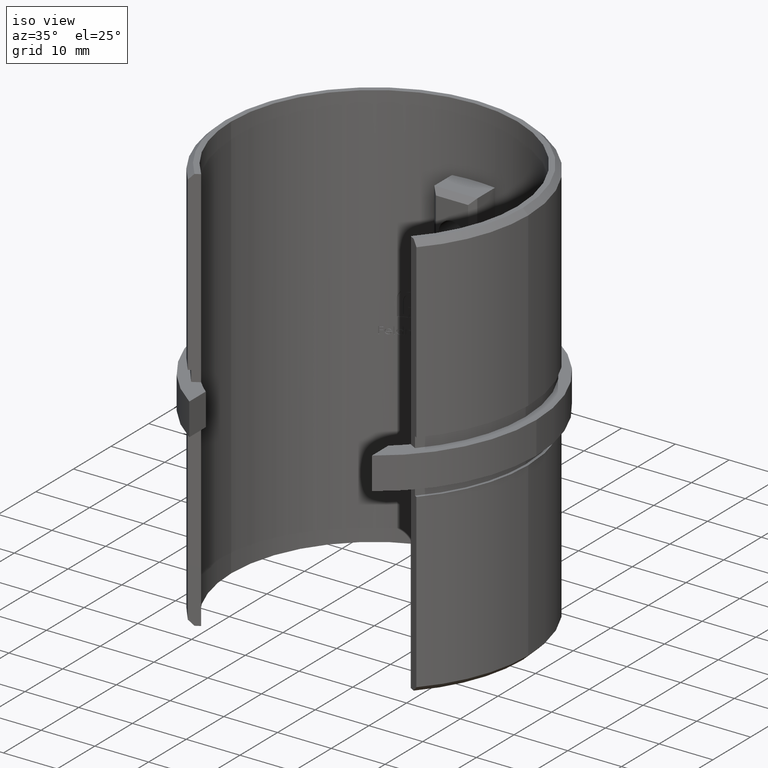
[diagram: clean part render]
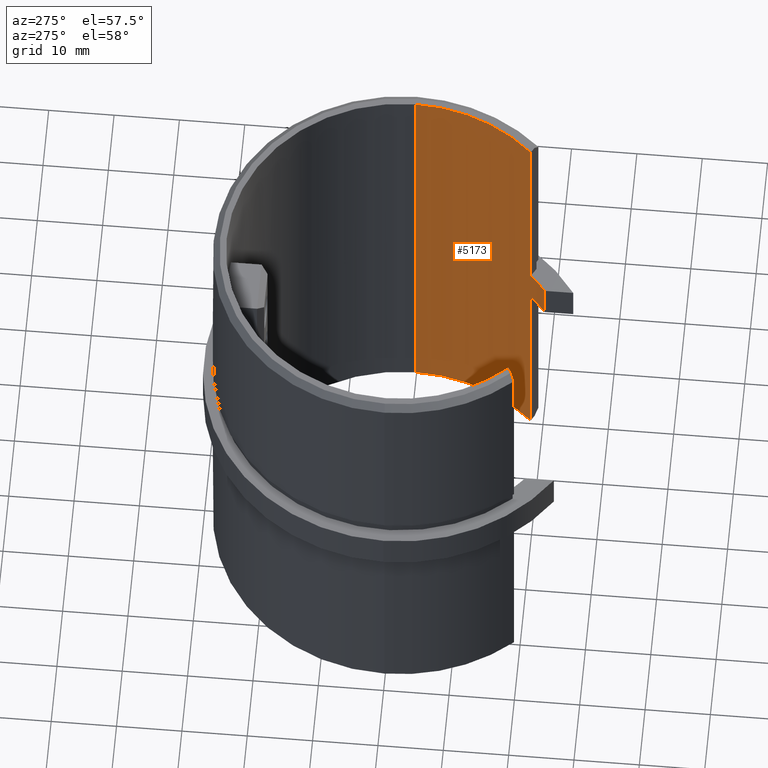
[diagram: tour spotlight — one face highlighted and labeled with its STEP entity id]
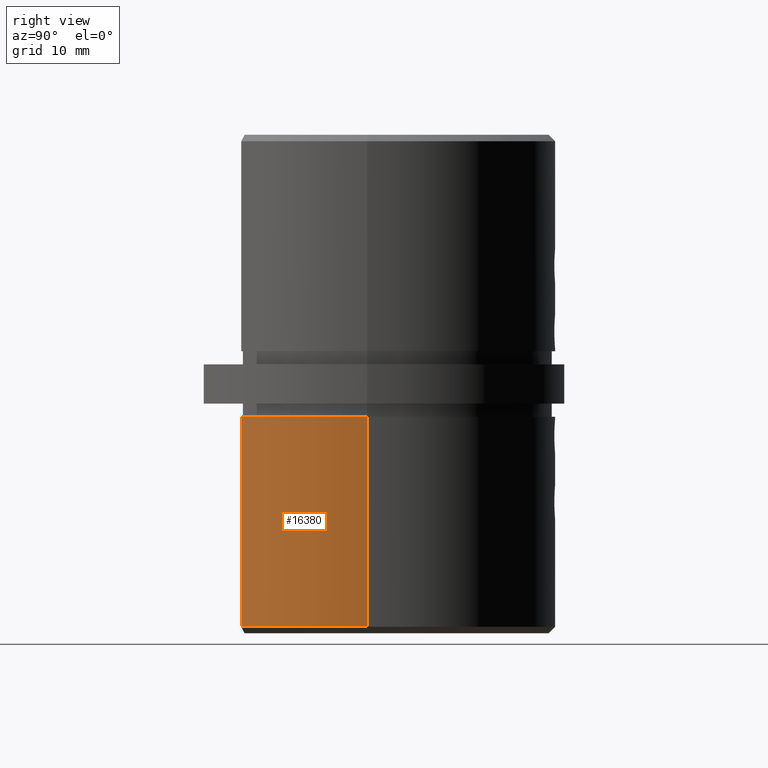
[diagram: tour spotlight — one face highlighted and labeled with its STEP entity id]
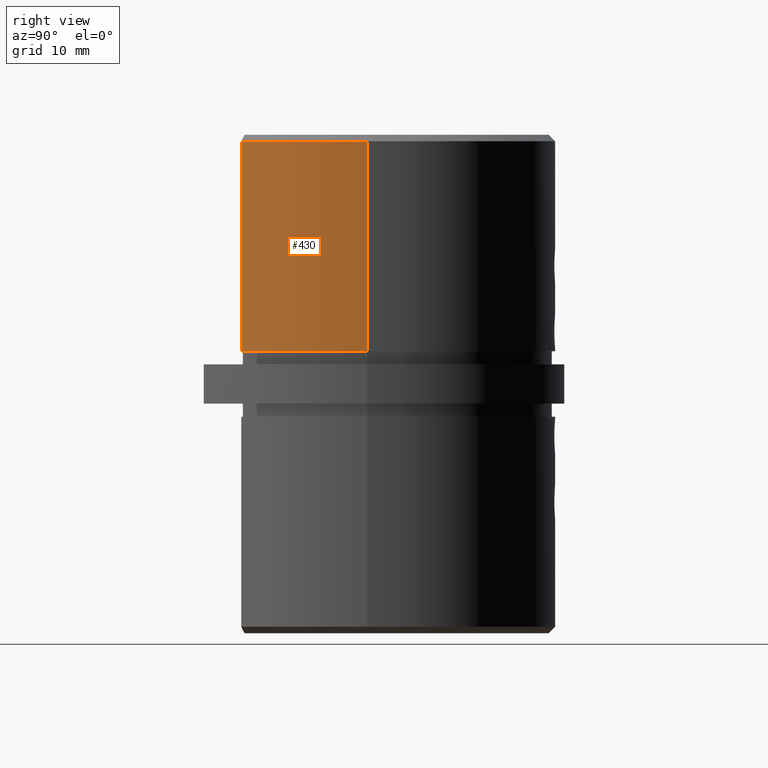
[diagram: tour spotlight — one face highlighted and labeled with its STEP entity id]
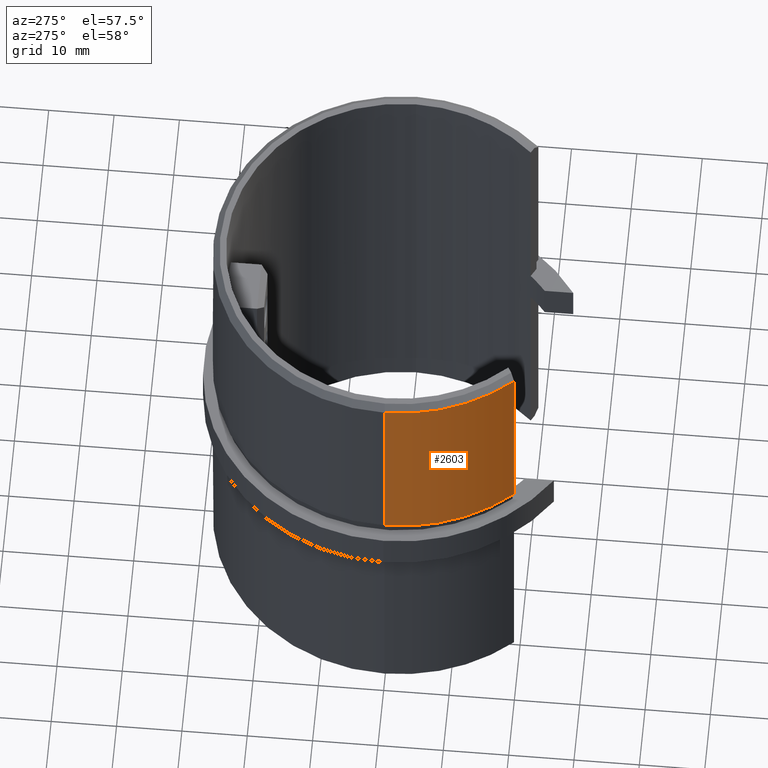
[diagram: tour spotlight — one face highlighted and labeled with its STEP entity id]
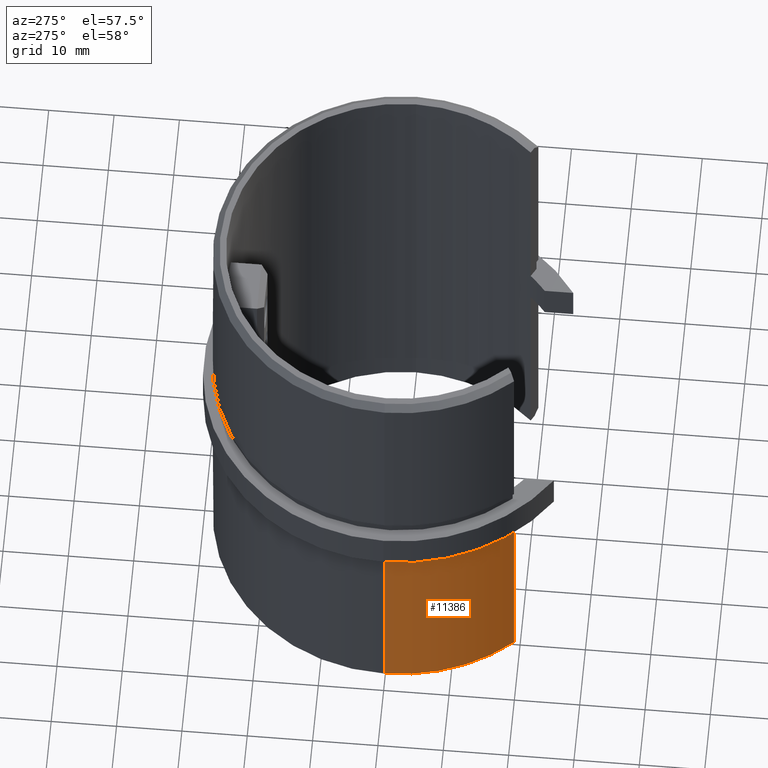
[diagram: tour spotlight — one face highlighted and labeled with its STEP entity id]
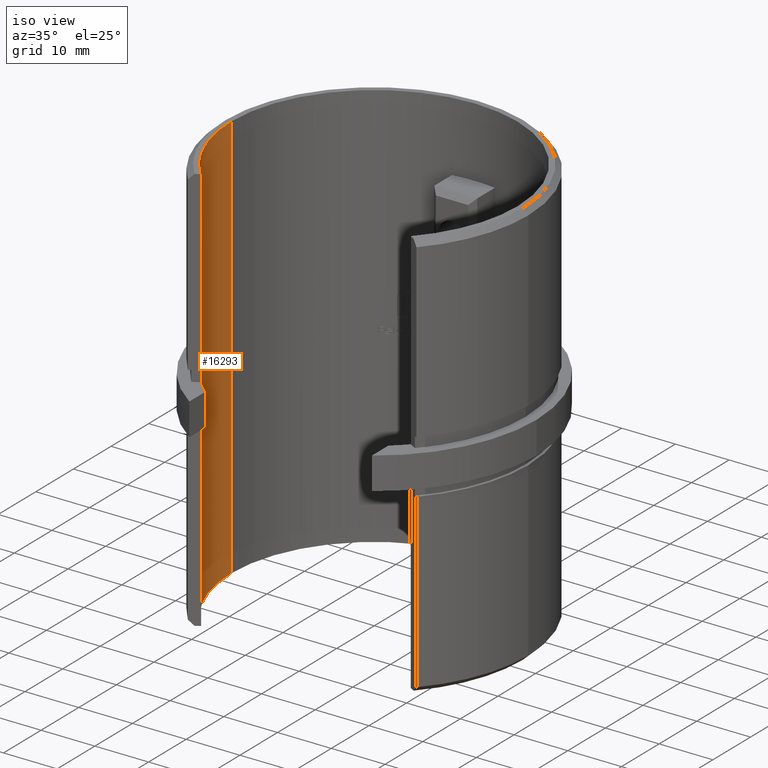
[diagram: tour spotlight — one face highlighted and labeled with its STEP entity id]
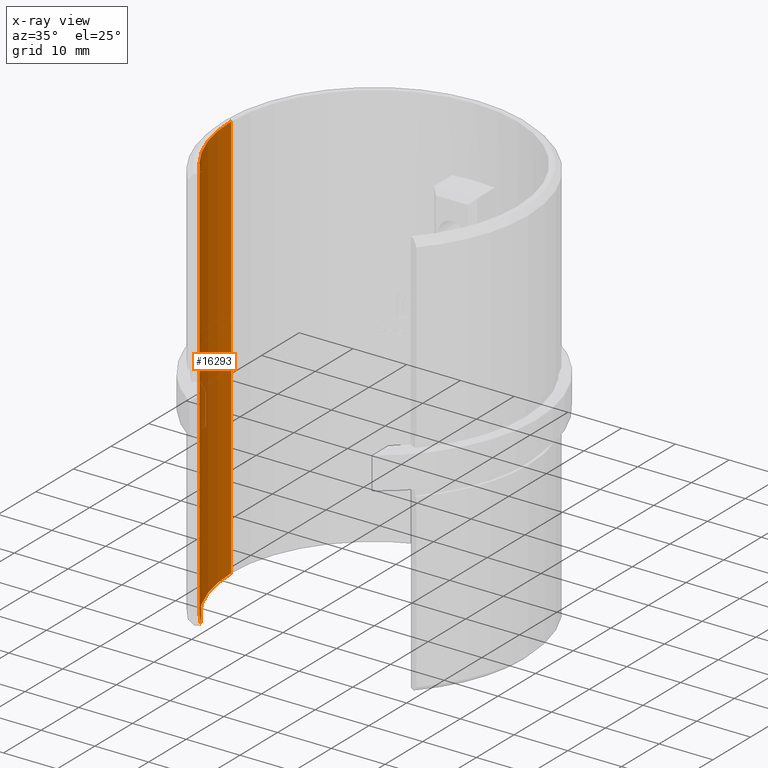
[diagram: x-ray of the same camera — body ghosted, this tour face saturated]
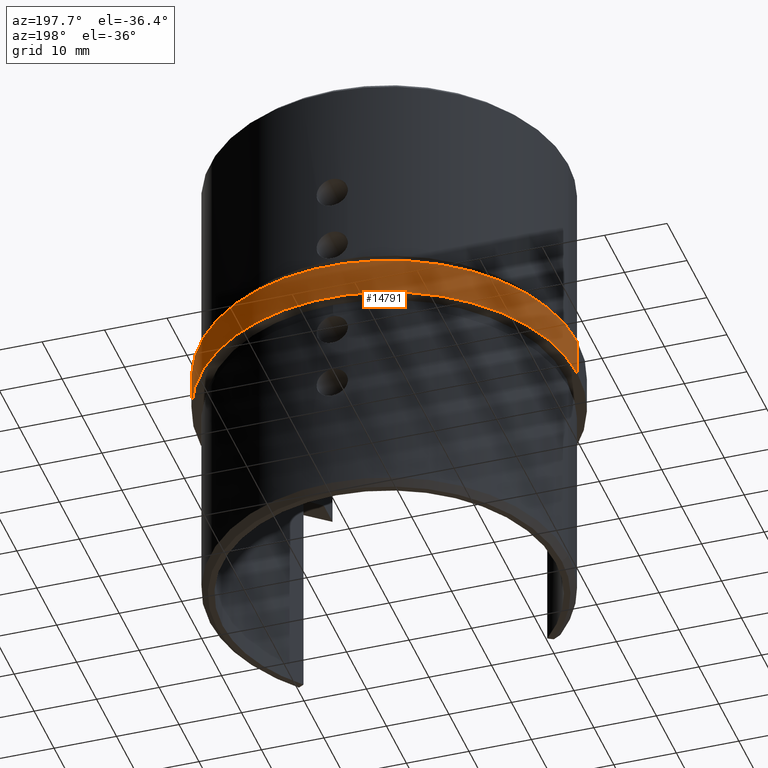
[diagram: tour spotlight — one face highlighted and labeled with its STEP entity id]
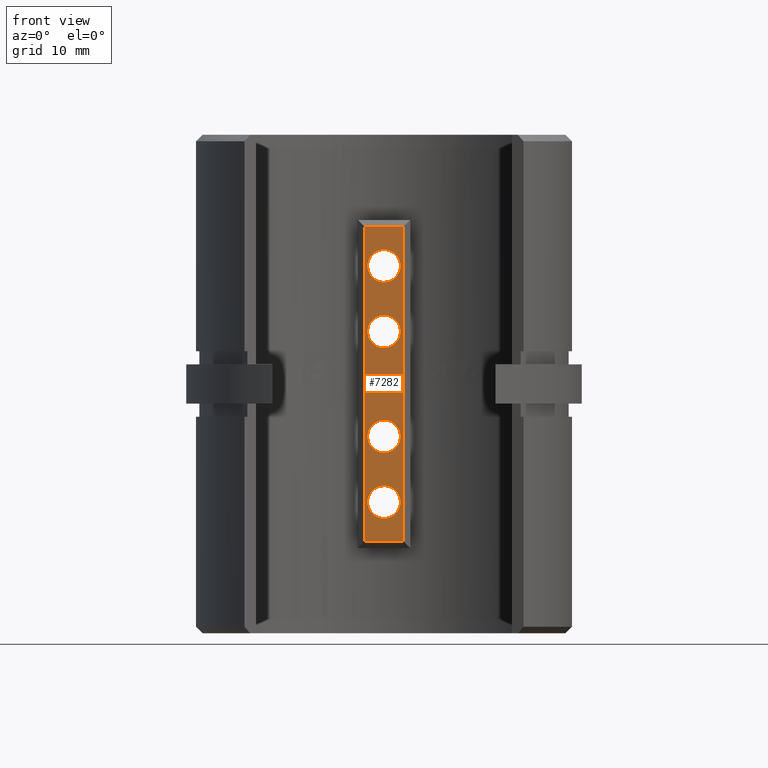
[diagram: tour spotlight — one face highlighted and labeled with its STEP entity id]
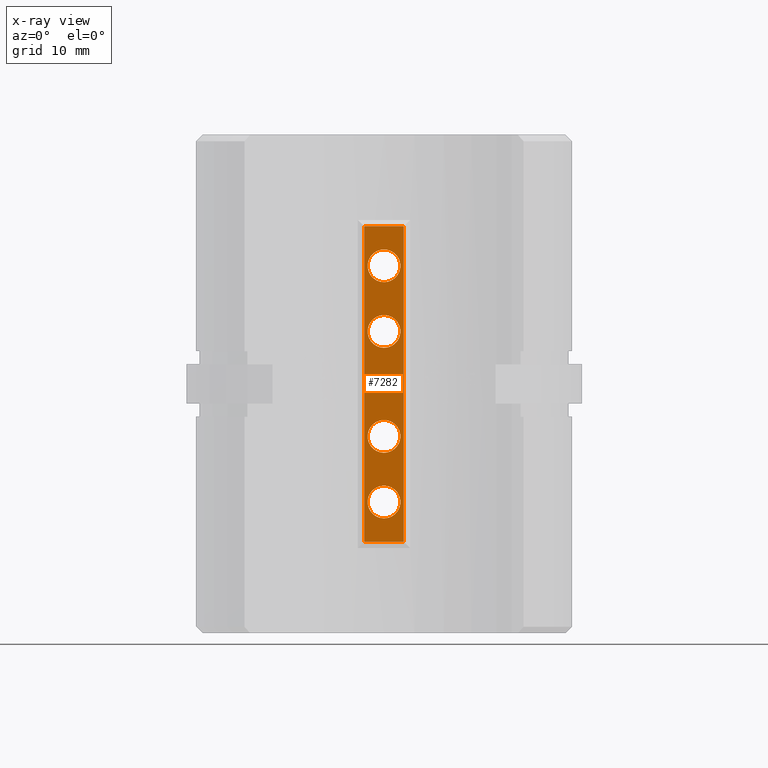
[diagram: x-ray of the same camera — body ghosted, this tour face saturated]
A machine part: a face-by-face anatomy tour. The part has 352 B-rep faces; the first image is the clean iso view, then the 8 largest visible faces are spotlighted one at a time (largest first), each with its STEP entity span.

Face 1 — auxiliary view, entity #5173. In plain terms, the highlighted cylindrical surface (partial cylindrical patch) has radius 26.65 mm, axis along (-0, -0, -1).
Definition (entity closure, byte-faithful):
#77 = AXIS2_PLACEMENT_3D ( 'NONE', #15982, #760, #15920 ) ;
#199 = LINE ( 'NONE', #6720, #13312 ) ;
#418 = EDGE_LOOP ( 'NONE', ( #5880, #13785, #6322, #13668, #9775, #15949, #1820, #4705 ) ) ;
#476 = DIRECTION ( 'NONE',  ( -0.000000000000000000, -0.000000000000000000, -1.000000000000000000 ) ) ;
#760 = DIRECTION ( 'NONE',  ( -0.000000000000000000, -0.000000000000000000, -1.000000000000000000 ) ) ;
#975 = EDGE_CURVE ( 'NONE', #5210, #9560, #5641, .T. ) ;
#1085 = DIRECTION ( 'NONE',  ( -0.000000000000000000, -0.000000000000000000, -1.000000000000000000 ) ) ;
#1140 = CARTESIAN_POINT ( 'NONE',  ( 0.000000000000000000, 0.000000000000000000, 3.000000000000000000 ) ) ;
#1511 = AXIS2_PLACEMENT_3D ( 'NONE', #1140, #5077, #2422 ) ;
#1820 = ORIENTED_EDGE ( 'NONE', *, *, #12419, .F. ) ;
#1843 = CARTESIAN_POINT ( 'NONE',  ( 17.00000000000000711, -20.52370580572621606, 3.000000000000000000 ) ) ;
#1875 = VECTOR ( 'NONE', #15994, 1000.000000000000000 ) ;
#1952 = VERTEX_POINT ( 'NONE', #2101 ) ;
#2101 = CARTESIAN_POINT ( 'NONE',  ( 17.00000000000000711, -20.52370580572621606, -3.000000000000000000 ) ) ;
#2422 = DIRECTION ( 'NONE',  ( 1.000000000000000000, 0.000000000000000000, 0.000000000000000000 ) ) ;
#3072 = CIRCLE ( 'NONE', #77, 26.65000000000000213 ) ;
#3514 = VERTEX_POINT ( 'NONE', #14158 ) ;
#3894 = EDGE_CURVE ( 'NONE', #15864, #1952, #12466, .T. ) ;
#3935 = CARTESIAN_POINT ( 'NONE',  ( 0.000000000000000000, 0.000000000000000000, -38.00000000000000711 ) ) ;
#4326 = FACE_OUTER_BOUND ( 'NONE', #418, .T. ) ;
#4331 = EDGE_CURVE ( 'NONE', #7545, #10898, #6745, .T. ) ;
#4705 = ORIENTED_EDGE ( 'NONE', *, *, #14908, .F. ) ;
#4805 = DIRECTION ( 'NONE',  ( 1.000000000000000000, 0.000000000000000000, 0.000000000000000000 ) ) ;
#4905 = CIRCLE ( 'NONE', #13985, 26.65000000000000568 ) ;
#5077 = DIRECTION ( 'NONE',  ( -0.000000000000000000, -0.000000000000000000, -1.000000000000000000 ) ) ;
#5173 = ADVANCED_FACE ( 'NONE', ( #4326 ), #10287, .F. ) ;
#5210 = VERTEX_POINT ( 'NONE', #11060 ) ;
#5641 = LINE ( 'NONE', #12293, #1875 ) ;
#5744 = VECTOR ( 'NONE', #10725, 1000.000000000000000 ) ;
#5880 = ORIENTED_EDGE ( 'NONE', *, *, #6069, .F. ) ;
#6069 = EDGE_CURVE ( 'NONE', #7545, #3514, #4905, .T. ) ;
#6090 = CARTESIAN_POINT ( 'NONE',  ( 0.000000000000000000, 0.000000000000000000, 38.00000000000000711 ) ) ;
#6322 = ORIENTED_EDGE ( 'NONE', *, *, #12847, .T. ) ;
#6545 = VECTOR ( 'NONE', #476, 1000.000000000000000 ) ;
#6720 = CARTESIAN_POINT ( 'NONE',  ( 19.50000000000000355, -18.16514519622676005, 38.00000000000000711 ) ) ;
#6745 = LINE ( 'NONE', #14125, #6545 ) ;
#6767 = CARTESIAN_POINT ( 'NONE',  ( 26.65000000000000924, 3.263683719727697378E-15, -38.00000000000000711 ) ) ;
#7545 = VERTEX_POINT ( 'NONE', #10656 ) ;
#9560 = VERTEX_POINT ( 'NONE', #16249 ) ;
#9775 = ORIENTED_EDGE ( 'NONE', *, *, #10678, .T. ) ;
#9894 = AXIS2_PLACEMENT_3D ( 'NONE', #14367, #15606, #13557 ) ;
#10227 = DIRECTION ( 'NONE',  ( 1.000000000000000000, 0.000000000000000000, 0.000000000000000000 ) ) ;
#10287 = CYLINDRICAL_SURFACE ( 'NONE', #9894, 26.65000000000000213 ) ;
#10427 = DIRECTION ( 'NONE',  ( -0.000000000000000000, -0.000000000000000000, -1.000000000000000000 ) ) ;
#10656 = CARTESIAN_POINT ( 'NONE',  ( 26.65000000000000924, 3.263683719727697378E-15, 38.00000000000000711 ) ) ;
#10678 = EDGE_CURVE ( 'NONE', #9560, #1952, #3072, .T. ) ;
#10725 = DIRECTION ( 'NONE',  ( -0.000000000000000000, -0.000000000000000000, -1.000000000000000000 ) ) ;
#10898 = VERTEX_POINT ( 'NONE', #6767 ) ;
#11060 = CARTESIAN_POINT ( 'NONE',  ( 19.50000000000000355, -18.16514519622676005, -38.00000000000000711 ) ) ;
#12151 = CIRCLE ( 'NONE', #12543, 26.65000000000000568 ) ;
#12293 = CARTESIAN_POINT ( 'NONE',  ( 19.50000000000000355, -18.16514519622676005, -38.00000000000000711 ) ) ;
#12419 = EDGE_CURVE ( 'NONE', #14746, #15864, #16286, .T. ) ;
#12466 = LINE ( 'NONE', #1843, #5744 ) ;
#12543 = AXIS2_PLACEMENT_3D ( 'NONE', #3935, #12706, #10227 ) ;
#12706 = DIRECTION ( 'NONE',  ( 0.000000000000000000, 0.000000000000000000, -1.000000000000000000 ) ) ;
#12847 = EDGE_CURVE ( 'NONE', #10898, #5210, #12151, .T. ) ;
#13312 = VECTOR ( 'NONE', #10427, 1000.000000000000000 ) ;
#13557 = DIRECTION ( 'NONE',  ( -1.000000000000000000, 0.000000000000000000, 0.000000000000000000 ) ) ;
#13668 = ORIENTED_EDGE ( 'NONE', *, *, #975, .T. ) ;
#13785 = ORIENTED_EDGE ( 'NONE', *, *, #4331, .T. ) ;
#13985 = AXIS2_PLACEMENT_3D ( 'NONE', #6090, #1085, #4805 ) ;
#14125 = CARTESIAN_POINT ( 'NONE',  ( 26.65000000000000213, 3.263683719727696589E-15, 3.000000000000000000 ) ) ;
#14158 = CARTESIAN_POINT ( 'NONE',  ( 19.50000000000000355, -18.16514519622676005, 38.00000000000000711 ) ) ;
#14367 = CARTESIAN_POINT ( 'NONE',  ( 0.000000000000000000, 0.000000000000000000, 3.000000000000000000 ) ) ;
#14746 = VERTEX_POINT ( 'NONE', #15324 ) ;
#14908 = EDGE_CURVE ( 'NONE', #3514, #14746, #199, .T. ) ;
#15324 = CARTESIAN_POINT ( 'NONE',  ( 19.50000000000000355, -18.16514519622676005, 3.000000000000000000 ) ) ;
#15407 = CARTESIAN_POINT ( 'NONE',  ( 17.00000000000000711, -20.52370580572621606, 3.000000000000000000 ) ) ;
#15606 = DIRECTION ( 'NONE',  ( -0.000000000000000000, -0.000000000000000000, -1.000000000000000000 ) ) ;
#15864 = VERTEX_POINT ( 'NONE', #15407 ) ;
#15920 = DIRECTION ( 'NONE',  ( 1.000000000000000000, 0.000000000000000000, 0.000000000000000000 ) ) ;
#15949 = ORIENTED_EDGE ( 'NONE', *, *, #3894, .F. ) ;
#15982 = CARTESIAN_POINT ( 'NONE',  ( 0.000000000000000000, 0.000000000000000000, -3.000000000000000000 ) ) ;
#15994 = DIRECTION ( 'NONE',  ( -0.000000000000000000, -0.000000000000000000, 1.000000000000000000 ) ) ;
#16249 = CARTESIAN_POINT ( 'NONE',  ( 19.50000000000000355, -18.16514519622676005, -3.000000000000000000 ) ) ;
#16286 = CIRCLE ( 'NONE', #1511, 26.65000000000000213 ) ;

Face 2 — right view, entity #16380. In plain terms, the highlighted cylindrical surface (partial cylindrical patch) has radius 28.65 mm, axis along (-0, -0, 1).
Definition (entity closure, byte-faithful):
#327 = AXIS2_PLACEMENT_3D ( 'NONE', #4426, #15814, #3091 ) ;
#1088 = CARTESIAN_POINT ( 'NONE',  ( 21.27411917348713644, -19.18943337861405496, -37.00000000000003553 ) ) ;
#1336 = FACE_OUTER_BOUND ( 'NONE', #11143, .T. ) ;
#1661 = EDGE_CURVE ( 'NONE', #14603, #7468, #6219, .T. ) ;
#2485 = CARTESIAN_POINT ( 'NONE',  ( 21.27411917348713644, -19.18943337861404075, -4.999999999999997335 ) ) ;
#2677 = EDGE_CURVE ( 'NONE', #15092, #7912, #15885, .T. ) ;
#2776 = EDGE_CURVE ( 'NONE', #14603, #15092, #8214, .T. ) ;
#3091 = DIRECTION ( 'NONE',  ( 1.000000000000000000, 0.000000000000000000, 0.000000000000000000 ) ) ;
#3430 = CIRCLE ( 'NONE', #3474, 28.65000000000000213 ) ;
#3474 = AXIS2_PLACEMENT_3D ( 'NONE', #15225, #11470, #8889 ) ;
#4118 = CYLINDRICAL_SURFACE ( 'NONE', #327, 28.65000000000000213 ) ;
#4426 = CARTESIAN_POINT ( 'NONE',  ( 0.000000000000000000, 0.000000000000000000, -38.00000000000000711 ) ) ;
#4626 = CARTESIAN_POINT ( 'NONE',  ( 28.65000000000000213, 0.000000000000000000, -37.00000000000003553 ) ) ;
#5040 = CARTESIAN_POINT ( 'NONE',  ( 0.000000000000000000, 0.000000000000000000, -37.00000000000003553 ) ) ;
#5225 = CARTESIAN_POINT ( 'NONE',  ( 28.65000000000000213, 0.000000000000000000, -38.00000000000000711 ) ) ;
#5870 = DIRECTION ( 'NONE',  ( -1.000000000000000000, 1.776356839400250465E-15, 0.000000000000000000 ) ) ;
#6117 = AXIS2_PLACEMENT_3D ( 'NONE', #5040, #7739, #5870 ) ;
#6219 = LINE ( 'NONE', #8558, #7432 ) ;
#6251 = ORIENTED_EDGE ( 'NONE', *, *, #1661, .F. ) ;
#7432 = VECTOR ( 'NONE', #13757, 1000.000000000000000 ) ;
#7468 = VERTEX_POINT ( 'NONE', #2485 ) ;
#7739 = DIRECTION ( 'NONE',  ( -0.000000000000000000, -0.000000000000000000, 1.000000000000000000 ) ) ;
#7779 = ORIENTED_EDGE ( 'NONE', *, *, #2677, .T. ) ;
#7912 = VERTEX_POINT ( 'NONE', #12155 ) ;
#8214 = CIRCLE ( 'NONE', #6117, 28.65000000000000213 ) ;
#8558 = CARTESIAN_POINT ( 'NONE',  ( 21.27411917348713644, -19.18943337861405496, -38.00000000000000711 ) ) ;
#8889 = DIRECTION ( 'NONE',  ( 1.000000000000000000, 0.000000000000000000, 0.000000000000000000 ) ) ;
#8955 = DIRECTION ( 'NONE',  ( -0.000000000000000000, -0.000000000000000000, 1.000000000000000000 ) ) ;
#9967 = VECTOR ( 'NONE', #8955, 1000.000000000000000 ) ;
#10681 = ORIENTED_EDGE ( 'NONE', *, *, #2776, .T. ) ;
#11029 = EDGE_CURVE ( 'NONE', #7912, #7468, #3430, .T. ) ;
#11143 = EDGE_LOOP ( 'NONE', ( #10681, #7779, #11254, #6251 ) ) ;
#11254 = ORIENTED_EDGE ( 'NONE', *, *, #11029, .T. ) ;
#11470 = DIRECTION ( 'NONE',  ( 0.000000000000000000, 0.000000000000000000, -1.000000000000000000 ) ) ;
#12155 = CARTESIAN_POINT ( 'NONE',  ( 28.65000000000000213, 0.000000000000000000, -4.999999999999997335 ) ) ;
#13757 = DIRECTION ( 'NONE',  ( -0.000000000000000000, -0.000000000000000000, 1.000000000000000000 ) ) ;
#14603 = VERTEX_POINT ( 'NONE', #1088 ) ;
#15092 = VERTEX_POINT ( 'NONE', #4626 ) ;
#15225 = CARTESIAN_POINT ( 'NONE',  ( 0.000000000000000000, 0.000000000000000000, -4.999999999999997335 ) ) ;
#15814 = DIRECTION ( 'NONE',  ( -0.000000000000000000, -0.000000000000000000, 1.000000000000000000 ) ) ;
#15885 = LINE ( 'NONE', #5225, #9967 ) ;
#16380 = ADVANCED_FACE ( 'NONE', ( #1336 ), #4118, .T. ) ;

Face 3 — right view, entity #430. In plain terms, the highlighted cylindrical surface (partial cylindrical patch) has radius 28.65 mm, axis along (-0, -0, -1).
Definition (entity closure, byte-faithful):
#82 = VECTOR ( 'NONE', #16329, 1000.000000000000000 ) ;
#109 = EDGE_CURVE ( 'NONE', #9451, #11307, #7445, .T. ) ;
#241 = CARTESIAN_POINT ( 'NONE',  ( 21.27411917348713288, -19.18943337861405141, 4.999999999999997335 ) ) ;
#364 = CARTESIAN_POINT ( 'NONE',  ( 0.000000000000000000, 0.000000000000000000, 38.00000000000000711 ) ) ;
#430 = ADVANCED_FACE ( 'NONE', ( #3848 ), #5248, .T. ) ;
#603 = ORIENTED_EDGE ( 'NONE', *, *, #109, .T. ) ;
#762 = CARTESIAN_POINT ( 'NONE',  ( 21.27411917348713644, -19.18943337861405496, 37.00000000000000000 ) ) ;
#795 = DIRECTION ( 'NONE',  ( -1.000000000000000000, 0.000000000000000000, 0.000000000000000000 ) ) ;
#912 = DIRECTION ( 'NONE',  ( -0.000000000000000000, -0.000000000000000000, -1.000000000000000000 ) ) ;
#2043 = DIRECTION ( 'NONE',  ( -0.000000000000000000, -0.000000000000000000, -1.000000000000000000 ) ) ;
#3065 = CARTESIAN_POINT ( 'NONE',  ( 21.27411917348713644, -19.18943337861405496, 38.00000000000000711 ) ) ;
#3848 = FACE_OUTER_BOUND ( 'NONE', #8082, .T. ) ;
#4193 = ORIENTED_EDGE ( 'NONE', *, *, #8351, .F. ) ;
#4422 = CARTESIAN_POINT ( 'NONE',  ( 28.65000000000000213, 3.508613079557167674E-15, 4.999999999999997335 ) ) ;
#5248 = CYLINDRICAL_SURFACE ( 'NONE', #11722, 28.65000000000000213 ) ;
#6662 = CIRCLE ( 'NONE', #16304, 28.65000000000000213 ) ;
#7065 = VECTOR ( 'NONE', #2043, 1000.000000000000000 ) ;
#7445 = LINE ( 'NONE', #3065, #82 ) ;
#7831 = CIRCLE ( 'NONE', #8948, 28.65000000000000213 ) ;
#7911 = ORIENTED_EDGE ( 'NONE', *, *, #12318, .F. ) ;
#8082 = EDGE_LOOP ( 'NONE', ( #4193, #10563, #603, #7911 ) ) ;
#8264 = CARTESIAN_POINT ( 'NONE',  ( 0.000000000000000000, 0.000000000000000000, 37.00000000000000000 ) ) ;
#8351 = EDGE_CURVE ( 'NONE', #14264, #8664, #11008, .T. ) ;
#8664 = VERTEX_POINT ( 'NONE', #4422 ) ;
#8702 = DIRECTION ( 'NONE',  ( -1.000000000000000000, 0.000000000000000000, 0.000000000000000000 ) ) ;
#8948 = AXIS2_PLACEMENT_3D ( 'NONE', #14764, #912, #8702 ) ;
#9004 = CARTESIAN_POINT ( 'NONE',  ( 28.65000000000000213, 3.508613079557167674E-15, 37.00000000000000000 ) ) ;
#9451 = VERTEX_POINT ( 'NONE', #762 ) ;
#9815 = EDGE_CURVE ( 'NONE', #14264, #9451, #6662, .T. ) ;
#10563 = ORIENTED_EDGE ( 'NONE', *, *, #9815, .T. ) ;
#10702 = DIRECTION ( 'NONE',  ( 0.000000000000000000, 0.000000000000000000, -1.000000000000000000 ) ) ;
#10959 = DIRECTION ( 'NONE',  ( -0.000000000000000000, -0.000000000000000000, -1.000000000000000000 ) ) ;
#11008 = LINE ( 'NONE', #14628, #7065 ) ;
#11307 = VERTEX_POINT ( 'NONE', #241 ) ;
#11722 = AXIS2_PLACEMENT_3D ( 'NONE', #364, #10959, #795 ) ;
#11955 = DIRECTION ( 'NONE',  ( 1.000000000000000000, 0.000000000000000000, 0.000000000000000000 ) ) ;
#12318 = EDGE_CURVE ( 'NONE', #8664, #11307, #7831, .T. ) ;
#14264 = VERTEX_POINT ( 'NONE', #9004 ) ;
#14628 = CARTESIAN_POINT ( 'NONE',  ( 28.65000000000000213, 3.508613079557167674E-15, 38.00000000000000711 ) ) ;
#14764 = CARTESIAN_POINT ( 'NONE',  ( 0.000000000000000000, 0.000000000000000000, 4.999999999999997335 ) ) ;
#16304 = AXIS2_PLACEMENT_3D ( 'NONE', #8264, #10702, #11955 ) ;
#16329 = DIRECTION ( 'NONE',  ( -0.000000000000000000, -0.000000000000000000, -1.000000000000000000 ) ) ;

Face 4 — auxiliary view, entity #2603. In plain terms, the highlighted cylindrical surface (partial cylindrical patch) has radius 28.65 mm, axis along (-0, -0, -1).
Definition (entity closure, byte-faithful):
#321 = DIRECTION ( 'NONE',  ( -0.000000000000000000, -0.000000000000000000, -1.000000000000000000 ) ) ;
#608 = AXIS2_PLACEMENT_3D ( 'NONE', #1206, #10088, #12625 ) ;
#1206 = CARTESIAN_POINT ( 'NONE',  ( 0.000000000000000000, 0.000000000000000000, 37.00000000000000000 ) ) ;
#1385 = CARTESIAN_POINT ( 'NONE',  ( 0.000000000000000000, 0.000000000000000000, 4.999999999999997335 ) ) ;
#1626 = CARTESIAN_POINT ( 'NONE',  ( -21.27411917348713644, -19.18943337861405141, 38.00000000000000711 ) ) ;
#2295 = VERTEX_POINT ( 'NONE', #5604 ) ;
#2596 = VECTOR ( 'NONE', #15723, 1000.000000000000000 ) ;
#2603 = ADVANCED_FACE ( 'NONE', ( #12940 ), #2825, .T. ) ;
#2647 = AXIS2_PLACEMENT_3D ( 'NONE', #1385, #16441, #3707 ) ;
#2740 = CARTESIAN_POINT ( 'NONE',  ( 0.000000000000000000, 0.000000000000000000, 38.00000000000000711 ) ) ;
#2825 = CYLINDRICAL_SURFACE ( 'NONE', #14413, 28.65000000000000213 ) ;
#3707 = DIRECTION ( 'NONE',  ( -1.000000000000000000, 0.000000000000000000, 0.000000000000000000 ) ) ;
#4656 = ORIENTED_EDGE ( 'NONE', *, *, #14313, .F. ) ;
#4907 = ORIENTED_EDGE ( 'NONE', *, *, #11006, .F. ) ;
#5124 = EDGE_CURVE ( 'NONE', #2295, #14552, #9880, .T. ) ;
#5604 = CARTESIAN_POINT ( 'NONE',  ( -28.65000000000000213, 0.000000000000000000, 37.00000000000000000 ) ) ;
#6397 = VERTEX_POINT ( 'NONE', #8326 ) ;
#7236 = CIRCLE ( 'NONE', #2647, 28.65000000000000213 ) ;
#7638 = DIRECTION ( 'NONE',  ( -0.000000000000000000, -0.000000000000000000, -1.000000000000000000 ) ) ;
#8130 = VECTOR ( 'NONE', #321, 1000.000000000000000 ) ;
#8326 = CARTESIAN_POINT ( 'NONE',  ( -21.27411917348713644, -19.18943337861405141, 37.00000000000000000 ) ) ;
#8484 = EDGE_CURVE ( 'NONE', #6397, #2295, #14387, .T. ) ;
#8737 = ORIENTED_EDGE ( 'NONE', *, *, #5124, .T. ) ;
#9279 = VERTEX_POINT ( 'NONE', #13142 ) ;
#9880 = LINE ( 'NONE', #11743, #8130 ) ;
#10088 = DIRECTION ( 'NONE',  ( 0.000000000000000000, 0.000000000000000000, -1.000000000000000000 ) ) ;
#10254 = ORIENTED_EDGE ( 'NONE', *, *, #8484, .T. ) ;
#10321 = EDGE_LOOP ( 'NONE', ( #10254, #8737, #4907, #4656 ) ) ;
#11006 = EDGE_CURVE ( 'NONE', #9279, #14552, #7236, .T. ) ;
#11743 = CARTESIAN_POINT ( 'NONE',  ( -28.65000000000000213, 0.000000000000000000, 38.00000000000000711 ) ) ;
#12625 = DIRECTION ( 'NONE',  ( 1.000000000000000000, 1.776356839400250465E-15, 0.000000000000000000 ) ) ;
#12940 = FACE_OUTER_BOUND ( 'NONE', #10321, .T. ) ;
#13142 = CARTESIAN_POINT ( 'NONE',  ( -21.27411917348713644, -19.18943337861405141, 4.999999999999997335 ) ) ;
#13585 = CARTESIAN_POINT ( 'NONE',  ( -28.65000000000000213, 0.000000000000000000, 4.999999999999997335 ) ) ;
#13930 = DIRECTION ( 'NONE',  ( -1.000000000000000000, 0.000000000000000000, 0.000000000000000000 ) ) ;
#14313 = EDGE_CURVE ( 'NONE', #6397, #9279, #14869, .T. ) ;
#14387 = CIRCLE ( 'NONE', #608, 28.65000000000000213 ) ;
#14413 = AXIS2_PLACEMENT_3D ( 'NONE', #2740, #7638, #13930 ) ;
#14552 = VERTEX_POINT ( 'NONE', #13585 ) ;
#14869 = LINE ( 'NONE', #1626, #2596 ) ;
#15723 = DIRECTION ( 'NONE',  ( -0.000000000000000000, -0.000000000000000000, -1.000000000000000000 ) ) ;
#16441 = DIRECTION ( 'NONE',  ( -0.000000000000000000, -0.000000000000000000, -1.000000000000000000 ) ) ;

Face 5 — auxiliary view, entity #11386. In plain terms, the highlighted cylindrical surface (partial cylindrical patch) has radius 28.65 mm, axis along (-0, -0, 1).
Definition (entity closure, byte-faithful):
#39 = CARTESIAN_POINT ( 'NONE',  ( -21.27411917348713644, -19.18943337861405141, -38.00000000000000711 ) ) ;
#758 = ORIENTED_EDGE ( 'NONE', *, *, #7755, .T. ) ;
#851 = FACE_OUTER_BOUND ( 'NONE', #3276, .T. ) ;
#997 = EDGE_CURVE ( 'NONE', #7651, #4933, #7237, .T. ) ;
#2094 = VECTOR ( 'NONE', #3856, 1000.000000000000000 ) ;
#2893 = CIRCLE ( 'NONE', #7976, 28.65000000000000213 ) ;
#3276 = EDGE_LOOP ( 'NONE', ( #12228, #4514, #14123, #758 ) ) ;
#3291 = EDGE_CURVE ( 'NONE', #6664, #9497, #14001, .T. ) ;
#3856 = DIRECTION ( 'NONE',  ( -0.000000000000000000, -0.000000000000000000, 1.000000000000000000 ) ) ;
#3880 = CARTESIAN_POINT ( 'NONE',  ( 0.000000000000000000, 0.000000000000000000, -37.00000000000003553 ) ) ;
#4003 = CARTESIAN_POINT ( 'NONE',  ( -21.27411917348713644, -19.18943337861405141, -37.00000000000003553 ) ) ;
#4412 = DIRECTION ( 'NONE',  ( 1.000000000000000000, 0.000000000000000000, 0.000000000000000000 ) ) ;
#4514 = ORIENTED_EDGE ( 'NONE', *, *, #12820, .T. ) ;
#4933 = VERTEX_POINT ( 'NONE', #8666 ) ;
#5093 = AXIS2_PLACEMENT_3D ( 'NONE', #9409, #9570, #4412 ) ;
#6141 = CARTESIAN_POINT ( 'NONE',  ( -21.27411917348713644, -19.18943337861405141, -4.999999999999997335 ) ) ;
#6237 = VECTOR ( 'NONE', #10706, 1000.000000000000000 ) ;
#6664 = VERTEX_POINT ( 'NONE', #4003 ) ;
#7237 = LINE ( 'NONE', #8324, #6237 ) ;
#7651 = VERTEX_POINT ( 'NONE', #12378 ) ;
#7755 = EDGE_CURVE ( 'NONE', #9497, #4933, #2893, .T. ) ;
#7976 = AXIS2_PLACEMENT_3D ( 'NONE', #10303, #11554, #7992 ) ;
#7992 = DIRECTION ( 'NONE',  ( 1.000000000000000000, 1.776356839400250465E-15, 0.000000000000000000 ) ) ;
#8024 = AXIS2_PLACEMENT_3D ( 'NONE', #3880, #12762, #15351 ) ;
#8324 = CARTESIAN_POINT ( 'NONE',  ( -28.65000000000000213, 3.508613079557167674E-15, -38.00000000000000711 ) ) ;
#8666 = CARTESIAN_POINT ( 'NONE',  ( -28.65000000000000213, 3.508613079557167674E-15, -4.999999999999997335 ) ) ;
#9409 = CARTESIAN_POINT ( 'NONE',  ( 0.000000000000000000, 0.000000000000000000, -38.00000000000000711 ) ) ;
#9497 = VERTEX_POINT ( 'NONE', #6141 ) ;
#9570 = DIRECTION ( 'NONE',  ( -0.000000000000000000, -0.000000000000000000, 1.000000000000000000 ) ) ;
#10303 = CARTESIAN_POINT ( 'NONE',  ( 0.000000000000000000, 0.000000000000000000, -4.999999999999997335 ) ) ;
#10706 = DIRECTION ( 'NONE',  ( -0.000000000000000000, -0.000000000000000000, 1.000000000000000000 ) ) ;
#11386 = ADVANCED_FACE ( 'NONE', ( #851 ), #14164, .T. ) ;
#11554 = DIRECTION ( 'NONE',  ( 0.000000000000000000, 0.000000000000000000, -1.000000000000000000 ) ) ;
#12228 = ORIENTED_EDGE ( 'NONE', *, *, #997, .F. ) ;
#12378 = CARTESIAN_POINT ( 'NONE',  ( -28.65000000000000213, 3.508613079557167674E-15, -37.00000000000003553 ) ) ;
#12762 = DIRECTION ( 'NONE',  ( -0.000000000000000000, -0.000000000000000000, 1.000000000000000000 ) ) ;
#12820 = EDGE_CURVE ( 'NONE', #7651, #6664, #15094, .T. ) ;
#14001 = LINE ( 'NONE', #39, #2094 ) ;
#14123 = ORIENTED_EDGE ( 'NONE', *, *, #3291, .T. ) ;
#14164 = CYLINDRICAL_SURFACE ( 'NONE', #5093, 28.65000000000000213 ) ;
#15094 = CIRCLE ( 'NONE', #8024, 28.65000000000000213 ) ;
#15351 = DIRECTION ( 'NONE',  ( -1.000000000000000000, 0.000000000000000000, 0.000000000000000000 ) ) ;

Face 6 — iso view, entity #16293. An x-ray twin of the same camera follows (body ghosted, this face saturated) — the face is partly hidden behind the body. In plain terms, the highlighted cylindrical surface (partial cylindrical patch) has radius 26.65 mm, axis along (-0, -0, -1).
Definition (entity closure, byte-faithful):
#58 = AXIS2_PLACEMENT_3D ( 'NONE', #10200, #8975, #8926 ) ;
#671 = CIRCLE ( 'NONE', #9553, 26.65000000000000213 ) ;
#1311 = DIRECTION ( 'NONE',  ( -0.000000000000000000, -0.000000000000000000, -1.000000000000000000 ) ) ;
#1565 = VERTEX_POINT ( 'NONE', #4511 ) ;
#2044 = DIRECTION ( 'NONE',  ( -0.000000000000000000, -0.000000000000000000, -1.000000000000000000 ) ) ;
#2103 = DIRECTION ( 'NONE',  ( 1.000000000000000000, 0.000000000000000000, 0.000000000000000000 ) ) ;
#2322 = ORIENTED_EDGE ( 'NONE', *, *, #4425, .T. ) ;
#2821 = DIRECTION ( 'NONE',  ( -0.000000000000000000, -0.000000000000000000, -1.000000000000000000 ) ) ;
#2851 = DIRECTION ( 'NONE',  ( -0.000000000000000000, -0.000000000000000000, 1.000000000000000000 ) ) ;
#3053 = DIRECTION ( 'NONE',  ( 1.000000000000000000, 0.000000000000000000, 0.000000000000000000 ) ) ;
#3312 = CARTESIAN_POINT ( 'NONE',  ( -26.65000000000000924, 0.000000000000000000, -38.00000000000000711 ) ) ;
#3337 = VECTOR ( 'NONE', #12066, 1000.000000000000000 ) ;
#3521 = CARTESIAN_POINT ( 'NONE',  ( 0.000000000000000000, 0.000000000000000000, -3.000000000000000000 ) ) ;
#3538 = CIRCLE ( 'NONE', #58, 26.65000000000000568 ) ;
#3550 = AXIS2_PLACEMENT_3D ( 'NONE', #12246, #2044, #2103 ) ;
#4025 = CARTESIAN_POINT ( 'NONE',  ( -19.49999999999999289, -18.16514519622676005, -3.000000000000000000 ) ) ;
#4049 = VERTEX_POINT ( 'NONE', #3312 ) ;
#4179 = EDGE_CURVE ( 'NONE', #12893, #4049, #3538, .T. ) ;
#4185 = DIRECTION ( 'NONE',  ( -0.000000000000000000, -0.000000000000000000, -1.000000000000000000 ) ) ;
#4262 = VERTEX_POINT ( 'NONE', #7661 ) ;
#4425 = EDGE_CURVE ( 'NONE', #9668, #13801, #11286, .T. ) ;
#4511 = CARTESIAN_POINT ( 'NONE',  ( -19.49999999999999645, -18.16514519622676360, 38.00000000000000711 ) ) ;
#4707 = EDGE_CURVE ( 'NONE', #12893, #14862, #8711, .T. ) ;
#5015 = CARTESIAN_POINT ( 'NONE',  ( -26.65000000000000213, 0.000000000000000000, 3.000000000000000000 ) ) ;
#5076 = CARTESIAN_POINT ( 'NONE',  ( -17.00000000000000000, -20.52370580572621961, -3.000000000000000000 ) ) ;
#5267 = VERTEX_POINT ( 'NONE', #8188 ) ;
#5290 = ORIENTED_EDGE ( 'NONE', *, *, #5942, .F. ) ;
#5448 = CARTESIAN_POINT ( 'NONE',  ( -19.49999999999999645, -18.16514519622676360, -38.00000000000000711 ) ) ;
#5899 = AXIS2_PLACEMENT_3D ( 'NONE', #7788, #2821, #14130 ) ;
#5942 = EDGE_CURVE ( 'NONE', #1565, #5267, #6304, .T. ) ;
#6218 = CIRCLE ( 'NONE', #7579, 26.65000000000000213 ) ;
#6304 = CIRCLE ( 'NONE', #3550, 26.65000000000000568 ) ;
#6752 = EDGE_LOOP ( 'NONE', ( #16219, #5290, #12411, #14048, #2322, #8401, #10075, #15417 ) ) ;
#7579 = AXIS2_PLACEMENT_3D ( 'NONE', #11698, #9337, #3053 ) ;
#7661 = CARTESIAN_POINT ( 'NONE',  ( -19.49999999999999289, -18.16514519622676005, 3.000000000000000000 ) ) ;
#7788 = CARTESIAN_POINT ( 'NONE',  ( 0.000000000000000000, 0.000000000000000000, 3.000000000000000000 ) ) ;
#8018 = VECTOR ( 'NONE', #1311, 1000.000000000000000 ) ;
#8048 = VECTOR ( 'NONE', #4185, 1000.000000000000000 ) ;
#8188 = CARTESIAN_POINT ( 'NONE',  ( -26.65000000000000924, 0.000000000000000000, 38.00000000000000711 ) ) ;
#8401 = ORIENTED_EDGE ( 'NONE', *, *, #9461, .T. ) ;
#8711 = LINE ( 'NONE', #14110, #12868 ) ;
#8926 = DIRECTION ( 'NONE',  ( 1.000000000000000000, 0.000000000000000000, 0.000000000000000000 ) ) ;
#8975 = DIRECTION ( 'NONE',  ( 0.000000000000000000, 0.000000000000000000, -1.000000000000000000 ) ) ;
#9293 = FACE_OUTER_BOUND ( 'NONE', #6752, .T. ) ;
#9337 = DIRECTION ( 'NONE',  ( -0.000000000000000000, -0.000000000000000000, -1.000000000000000000 ) ) ;
#9461 = EDGE_CURVE ( 'NONE', #13801, #14862, #671, .T. ) ;
#9553 = AXIS2_PLACEMENT_3D ( 'NONE', #3521, #12388, #11293 ) ;
#9581 = CARTESIAN_POINT ( 'NONE',  ( -17.00000000000000000, -20.52370580572621961, 3.000000000000000000 ) ) ;
#9668 = VERTEX_POINT ( 'NONE', #14122 ) ;
#10075 = ORIENTED_EDGE ( 'NONE', *, *, #4707, .F. ) ;
#10200 = CARTESIAN_POINT ( 'NONE',  ( 0.000000000000000000, 0.000000000000000000, -38.00000000000000711 ) ) ;
#11236 = EDGE_CURVE ( 'NONE', #5267, #4049, #15722, .T. ) ;
#11286 = LINE ( 'NONE', #9581, #3337 ) ;
#11293 = DIRECTION ( 'NONE',  ( 1.000000000000000000, 0.000000000000000000, 0.000000000000000000 ) ) ;
#11350 = LINE ( 'NONE', #12384, #8018 ) ;
#11698 = CARTESIAN_POINT ( 'NONE',  ( 0.000000000000000000, 0.000000000000000000, 3.000000000000000000 ) ) ;
#11713 = EDGE_CURVE ( 'NONE', #9668, #4262, #6218, .T. ) ;
#12066 = DIRECTION ( 'NONE',  ( -0.000000000000000000, -0.000000000000000000, -1.000000000000000000 ) ) ;
#12246 = CARTESIAN_POINT ( 'NONE',  ( 0.000000000000000000, 0.000000000000000000, 38.00000000000000711 ) ) ;
#12338 = EDGE_CURVE ( 'NONE', #1565, #4262, #11350, .T. ) ;
#12384 = CARTESIAN_POINT ( 'NONE',  ( -19.49999999999999645, -18.16514519622676360, 38.00000000000000711 ) ) ;
#12388 = DIRECTION ( 'NONE',  ( -0.000000000000000000, -0.000000000000000000, -1.000000000000000000 ) ) ;
#12411 = ORIENTED_EDGE ( 'NONE', *, *, #12338, .T. ) ;
#12868 = VECTOR ( 'NONE', #2851, 1000.000000000000000 ) ;
#12893 = VERTEX_POINT ( 'NONE', #5448 ) ;
#13801 = VERTEX_POINT ( 'NONE', #5076 ) ;
#14048 = ORIENTED_EDGE ( 'NONE', *, *, #11713, .F. ) ;
#14110 = CARTESIAN_POINT ( 'NONE',  ( -19.49999999999999645, -18.16514519622676360, -38.00000000000000711 ) ) ;
#14122 = CARTESIAN_POINT ( 'NONE',  ( -17.00000000000000000, -20.52370580572621961, 3.000000000000000000 ) ) ;
#14130 = DIRECTION ( 'NONE',  ( -1.000000000000000000, 0.000000000000000000, 0.000000000000000000 ) ) ;
#14247 = CYLINDRICAL_SURFACE ( 'NONE', #5899, 26.65000000000000213 ) ;
#14862 = VERTEX_POINT ( 'NONE', #4025 ) ;
#15417 = ORIENTED_EDGE ( 'NONE', *, *, #4179, .T. ) ;
#15722 = LINE ( 'NONE', #5015, #8048 ) ;
#16219 = ORIENTED_EDGE ( 'NONE', *, *, #11236, .F. ) ;
#16293 = ADVANCED_FACE ( 'NONE', ( #9293 ), #14247, .F. ) ;

Face 7 — auxiliary view, entity #14791. In plain terms, the highlighted cylindrical surface (partial cylindrical patch) has radius 30.15 mm, axis along (-0, -0, -1).
Definition (entity closure, byte-faithful):
#801 = FACE_OUTER_BOUND ( 'NONE', #8028, .T. ) ;
#1325 = CARTESIAN_POINT ( 'NONE',  ( 0.000000000000000000, 0.000000000000000000, 3.000000000000000000 ) ) ;
#1464 = DIRECTION ( 'NONE',  ( 1.000000000000000000, 0.000000000000000000, 0.000000000000000000 ) ) ;
#1653 = AXIS2_PLACEMENT_3D ( 'NONE', #4004, #2639, #1464 ) ;
#1851 = CARTESIAN_POINT ( 'NONE',  ( -30.15000000000000213, 0.000000000000000000, -3.000000000000000000 ) ) ;
#2369 = ORIENTED_EDGE ( 'NONE', *, *, #2984, .T. ) ;
#2540 = EDGE_CURVE ( 'NONE', #4716, #14401, #6609, .T. ) ;
#2600 = DIRECTION ( 'NONE',  ( -0.000000000000000000, -0.000000000000000000, -1.000000000000000000 ) ) ;
#2639 = DIRECTION ( 'NONE',  ( 0.000000000000000000, 0.000000000000000000, 1.000000000000000000 ) ) ;
#2977 = CARTESIAN_POINT ( 'NONE',  ( 30.15000000000000213, 3.692310099429270397E-15, 3.000000000000000000 ) ) ;
#2984 = EDGE_CURVE ( 'NONE', #15135, #14401, #13735, .T. ) ;
#3038 = AXIS2_PLACEMENT_3D ( 'NONE', #13010, #5421, #14299 ) ;
#3080 = DIRECTION ( 'NONE',  ( -0.000000000000000000, -0.000000000000000000, -1.000000000000000000 ) ) ;
#3570 = DIRECTION ( 'NONE',  ( -0.000000000000000000, -0.000000000000000000, -1.000000000000000000 ) ) ;
#4004 = CARTESIAN_POINT ( 'NONE',  ( 0.000000000000000000, 0.000000000000000000, 3.000000000000000000 ) ) ;
#4716 = VERTEX_POINT ( 'NONE', #6578 ) ;
#4795 = VECTOR ( 'NONE', #3570, 1000.000000000000000 ) ;
#5421 = DIRECTION ( 'NONE',  ( 0.000000000000000000, 0.000000000000000000, 1.000000000000000000 ) ) ;
#5761 = CIRCLE ( 'NONE', #1653, 30.15000000000000213 ) ;
#6079 = CARTESIAN_POINT ( 'NONE',  ( -30.15000000000000213, 0.000000000000000000, 3.000000000000000000 ) ) ;
#6578 = CARTESIAN_POINT ( 'NONE',  ( -30.15000000000000213, 0.000000000000000000, 3.000000000000000000 ) ) ;
#6609 = LINE ( 'NONE', #6079, #4795 ) ;
#7080 = ORIENTED_EDGE ( 'NONE', *, *, #10918, .T. ) ;
#7846 = VECTOR ( 'NONE', #3080, 1000.000000000000000 ) ;
#8028 = EDGE_LOOP ( 'NONE', ( #13390, #7080, #2369, #11125 ) ) ;
#10918 = EDGE_CURVE ( 'NONE', #13264, #15135, #13758, .T. ) ;
#11125 = ORIENTED_EDGE ( 'NONE', *, *, #2540, .F. ) ;
#11464 = DIRECTION ( 'NONE',  ( -1.000000000000000000, 0.000000000000000000, 0.000000000000000000 ) ) ;
#13010 = CARTESIAN_POINT ( 'NONE',  ( 0.000000000000000000, 0.000000000000000000, -3.000000000000000000 ) ) ;
#13264 = VERTEX_POINT ( 'NONE', #14477 ) ;
#13390 = ORIENTED_EDGE ( 'NONE', *, *, #15196, .F. ) ;
#13735 = CIRCLE ( 'NONE', #3038, 30.15000000000000213 ) ;
#13758 = LINE ( 'NONE', #2977, #7846 ) ;
#13904 = CYLINDRICAL_SURFACE ( 'NONE', #15303, 30.15000000000000213 ) ;
#14299 = DIRECTION ( 'NONE',  ( 1.000000000000000000, 0.000000000000000000, 0.000000000000000000 ) ) ;
#14401 = VERTEX_POINT ( 'NONE', #1851 ) ;
#14477 = CARTESIAN_POINT ( 'NONE',  ( 30.15000000000000213, 3.692310099429270397E-15, 3.000000000000000000 ) ) ;
#14791 = ADVANCED_FACE ( 'NONE', ( #801 ), #13904, .T. ) ;
#15135 = VERTEX_POINT ( 'NONE', #15308 ) ;
#15196 = EDGE_CURVE ( 'NONE', #13264, #4716, #5761, .T. ) ;
#15303 = AXIS2_PLACEMENT_3D ( 'NONE', #1325, #2600, #11464 ) ;
#15308 = CARTESIAN_POINT ( 'NONE',  ( 30.15000000000000213, 3.692310099429270397E-15, -3.000000000000000000 ) ) ;

Face 8 — front view, entity #7282. An x-ray twin of the same camera follows (body ghosted, this face saturated) — the face is partly hidden behind the body. In plain terms, the highlighted planar face has unit normal (0, 1, 0).
Definition (entity closure, byte-faithful):
#200 = DIRECTION ( 'NONE',  ( 0.000000000000000000, 0.000000000000000000, -1.000000000000000000 ) ) ;
#210 = VERTEX_POINT ( 'NONE', #10555 ) ;
#544 = CARTESIAN_POINT ( 'NONE',  ( 3.061616997868367857E-16, 20.65000000000000213, 20.49999999999998579 ) ) ;
#636 = CIRCLE ( 'NONE', #3553, 2.499999999999988454 ) ;
#1079 = EDGE_LOOP ( 'NONE', ( #14072, #3641, #8372, #9831 ) ) ;
#1090 = FACE_BOUND ( 'NONE', #15482, .T. ) ;
#1143 = CARTESIAN_POINT ( 'NONE',  ( 6.938893903907228378E-15, 20.65000000000000213, -18.00000000000000000 ) ) ;
#1345 = LINE ( 'NONE', #9124, #5527 ) ;
#1514 = FACE_BOUND ( 'NONE', #7267, .T. ) ;
#1951 = VERTEX_POINT ( 'NONE', #5873 ) ;
#2012 = AXIS2_PLACEMENT_3D ( 'NONE', #3304, #3199, #8429 ) ;
#2016 = DIRECTION ( 'NONE',  ( -0.000000000000000000, -1.000000000000000000, -0.000000000000000000 ) ) ;
#2208 = EDGE_CURVE ( 'NONE', #12027, #12635, #12152, .T. ) ;
#2441 = CARTESIAN_POINT ( 'NONE',  ( 3.000000000000000000, 20.65000000000000213, -24.00000000000000000 ) ) ;
#2456 = AXIS2_PLACEMENT_3D ( 'NONE', #7849, #6376, #2604 ) ;
#2461 = DIRECTION ( 'NONE',  ( -0.000000000000000000, -1.000000000000000000, -0.000000000000000000 ) ) ;
#2604 = DIRECTION ( 'NONE',  ( 0.000000000000000000, 0.000000000000000000, -1.000000000000000000 ) ) ;
#2842 = AXIS2_PLACEMENT_3D ( 'NONE', #13759, #6049, #8727 ) ;
#3004 = EDGE_CURVE ( 'NONE', #11101, #210, #636, .T. ) ;
#3142 = DIRECTION ( 'NONE',  ( 0.000000000000000000, 0.000000000000000000, -1.000000000000000000 ) ) ;
#3195 = DIRECTION ( 'NONE',  ( -0.000000000000000000, -1.000000000000000000, -0.000000000000000000 ) ) ;
#3199 = DIRECTION ( 'NONE',  ( -0.000000000000000000, -1.000000000000000000, -0.000000000000000000 ) ) ;
#3260 = ORIENTED_EDGE ( 'NONE', *, *, #5446, .F. ) ;
#3304 = CARTESIAN_POINT ( 'NONE',  ( 2.939152317953647894E-15, 20.65000000000000213, -8.000000000000000000 ) ) ;
#3451 = EDGE_CURVE ( 'NONE', #9758, #1951, #14402, .T. ) ;
#3553 = AXIS2_PLACEMENT_3D ( 'NONE', #1143, #6143, #6030 ) ;
#3641 = ORIENTED_EDGE ( 'NONE', *, *, #5374, .T. ) ;
#3672 = VECTOR ( 'NONE', #5836, 1000.000000000000000 ) ;
#4321 = DIRECTION ( 'NONE',  ( 0.000000000000000000, 0.000000000000000000, 1.000000000000000000 ) ) ;
#4481 = ORIENTED_EDGE ( 'NONE', *, *, #3004, .F. ) ;
#4588 = DIRECTION ( 'NONE',  ( 0.000000000000000000, 1.000000000000000000, 0.000000000000000000 ) ) ;
#4606 = VECTOR ( 'NONE', #4321, 1000.000000000000000 ) ;
#5080 = FACE_OUTER_BOUND ( 'NONE', #1079, .T. ) ;
#5310 = CARTESIAN_POINT ( 'NONE',  ( 2.939152317953647894E-15, 20.65000000000000213, -10.49999999999998934 ) ) ;
#5374 = EDGE_CURVE ( 'NONE', #13633, #12027, #1345, .T. ) ;
#5388 = VERTEX_POINT ( 'NONE', #14059 ) ;
#5446 = EDGE_CURVE ( 'NONE', #210, #11101, #16187, .T. ) ;
#5527 = VECTOR ( 'NONE', #12891, 1000.000000000000000 ) ;
#5836 = DIRECTION ( 'NONE',  ( -1.000000000000000000, 0.000000000000000000, 0.000000000000000000 ) ) ;
#5873 = CARTESIAN_POINT ( 'NONE',  ( 3.245314017740484976E-15, 20.65000000000000213, -5.500000000000011546 ) ) ;
#5881 = FACE_BOUND ( 'NONE', #8943, .T. ) ;
#6030 = DIRECTION ( 'NONE',  ( 0.000000000000000000, 0.000000000000000000, -1.000000000000000000 ) ) ;
#6049 = DIRECTION ( 'NONE',  ( -0.000000000000000000, -1.000000000000000000, -0.000000000000000000 ) ) ;
#6143 = DIRECTION ( 'NONE',  ( -0.000000000000000000, -1.000000000000000000, -0.000000000000000000 ) ) ;
#6263 = ORIENTED_EDGE ( 'NONE', *, *, #8073, .F. ) ;
#6376 = DIRECTION ( 'NONE',  ( -0.000000000000000000, -1.000000000000000000, -0.000000000000000000 ) ) ;
#6377 = VERTEX_POINT ( 'NONE', #544 ) ;
#6523 = AXIS2_PLACEMENT_3D ( 'NONE', #14412, #3195, #3142 ) ;
#6731 = ORIENTED_EDGE ( 'NONE', *, *, #12045, .F. ) ;
#6896 = CARTESIAN_POINT ( 'NONE',  ( 3.000000000000000000, 20.65000000000000213, 25.00000000000000000 ) ) ;
#7036 = CARTESIAN_POINT ( 'NONE',  ( 6.938893903907228378E-15, 20.65000000000000213, -18.00000000000000000 ) ) ;
#7047 = EDGE_CURVE ( 'NONE', #12583, #13633, #8658, .T. ) ;
#7121 = ORIENTED_EDGE ( 'NONE', *, *, #10657, .F. ) ;
#7267 = EDGE_LOOP ( 'NONE', ( #6263, #15548 ) ) ;
#7282 = ADVANCED_FACE ( 'NONE', ( #14210, #1514, #1090, #5881, #5080 ), #12035, .F. ) ;
#7326 = CARTESIAN_POINT ( 'NONE',  ( 6.938893903907228378E-15, 20.65000000000000213, -20.49999999999998579 ) ) ;
#7671 = EDGE_LOOP ( 'NONE', ( #6731, #11798 ) ) ;
#7699 = DIRECTION ( 'NONE',  ( 0.000000000000000000, 0.000000000000000000, -1.000000000000000000 ) ) ;
#7785 = CARTESIAN_POINT ( 'NONE',  ( 0.000000000000000000, 20.65000000000000213, 8.000000000000000000 ) ) ;
#7849 = CARTESIAN_POINT ( 'NONE',  ( 0.000000000000000000, 20.65000000000000213, 18.00000000000000000 ) ) ;
#7903 = EDGE_CURVE ( 'NONE', #12635, #12583, #15951, .T. ) ;
#8073 = EDGE_CURVE ( 'NONE', #13601, #15988, #10237, .T. ) ;
#8372 = ORIENTED_EDGE ( 'NONE', *, *, #2208, .T. ) ;
#8429 = DIRECTION ( 'NONE',  ( 0.000000000000000000, 0.000000000000000000, -1.000000000000000000 ) ) ;
#8507 = EDGE_CURVE ( 'NONE', #15988, #13601, #12011, .T. ) ;
#8658 = LINE ( 'NONE', #11532, #14976 ) ;
#8727 = DIRECTION ( 'NONE',  ( 0.000000000000000000, 0.000000000000000000, -1.000000000000000000 ) ) ;
#8943 = EDGE_LOOP ( 'NONE', ( #4481, #3260 ) ) ;
#9048 = ORIENTED_EDGE ( 'NONE', *, *, #3451, .F. ) ;
#9124 = CARTESIAN_POINT ( 'NONE',  ( -3.999999999999999112, 20.65000000000000213, -24.00000000000000000 ) ) ;
#9218 = CARTESIAN_POINT ( 'NONE',  ( 3.061616997868370322E-16, 20.65000000000000213, 10.49999999999998934 ) ) ;
#9758 = VERTEX_POINT ( 'NONE', #5310 ) ;
#9790 = CIRCLE ( 'NONE', #2456, 2.499999999999988454 ) ;
#9831 = ORIENTED_EDGE ( 'NONE', *, *, #7903, .T. ) ;
#10237 = CIRCLE ( 'NONE', #2842, 2.499999999999988454 ) ;
#10555 = CARTESIAN_POINT ( 'NONE',  ( 7.245055603694066248E-15, 20.65000000000000213, -15.50000000000001066 ) ) ;
#10604 = AXIS2_PLACEMENT_3D ( 'NONE', #10879, #4588, #15879 ) ;
#10657 = EDGE_CURVE ( 'NONE', #1951, #9758, #13589, .T. ) ;
#10879 = CARTESIAN_POINT ( 'NONE',  ( -3.999999999999999112, 20.65000000000000213, 25.00000000000000000 ) ) ;
#10920 = AXIS2_PLACEMENT_3D ( 'NONE', #15297, #2461, #7699 ) ;
#11101 = VERTEX_POINT ( 'NONE', #7326 ) ;
#11418 = DIRECTION ( 'NONE',  ( 0.000000000000000000, 0.000000000000000000, -1.000000000000000000 ) ) ;
#11532 = CARTESIAN_POINT ( 'NONE',  ( -2.999999999999998668, 20.65000000000000213, 25.00000000000000000 ) ) ;
#11787 = CARTESIAN_POINT ( 'NONE',  ( 0.000000000000000000, 20.65000000000000213, 5.500000000000011546 ) ) ;
#11798 = ORIENTED_EDGE ( 'NONE', *, *, #14928, .F. ) ;
#12000 = AXIS2_PLACEMENT_3D ( 'NONE', #7036, #2016, #14691 ) ;
#12011 = CIRCLE ( 'NONE', #12183, 2.499999999999988454 ) ;
#12027 = VERTEX_POINT ( 'NONE', #2441 ) ;
#12035 = PLANE ( 'NONE',  #10604 ) ;
#12045 = EDGE_CURVE ( 'NONE', #5388, #6377, #9790, .T. ) ;
#12152 = LINE ( 'NONE', #6896, #4606 ) ;
#12183 = AXIS2_PLACEMENT_3D ( 'NONE', #7785, #14018, #200 ) ;
#12583 = VERTEX_POINT ( 'NONE', #13065 ) ;
#12635 = VERTEX_POINT ( 'NONE', #15747 ) ;
#12891 = DIRECTION ( 'NONE',  ( 1.000000000000000000, 0.000000000000000000, 0.000000000000000000 ) ) ;
#13065 = CARTESIAN_POINT ( 'NONE',  ( -2.999999999999998668, 20.65000000000000213, 24.00000000000000000 ) ) ;
#13589 = CIRCLE ( 'NONE', #2012, 2.499999999999988454 ) ;
#13601 = VERTEX_POINT ( 'NONE', #11787 ) ;
#13633 = VERTEX_POINT ( 'NONE', #15598 ) ;
#13701 = CIRCLE ( 'NONE', #6523, 2.499999999999988454 ) ;
#13759 = CARTESIAN_POINT ( 'NONE',  ( 0.000000000000000000, 20.65000000000000213, 8.000000000000000000 ) ) ;
#14018 = DIRECTION ( 'NONE',  ( -0.000000000000000000, -1.000000000000000000, -0.000000000000000000 ) ) ;
#14059 = CARTESIAN_POINT ( 'NONE',  ( 0.000000000000000000, 20.65000000000000213, 15.50000000000001066 ) ) ;
#14072 = ORIENTED_EDGE ( 'NONE', *, *, #7047, .T. ) ;
#14210 = FACE_BOUND ( 'NONE', #7671, .T. ) ;
#14402 = CIRCLE ( 'NONE', #10920, 2.499999999999988454 ) ;
#14412 = CARTESIAN_POINT ( 'NONE',  ( 0.000000000000000000, 20.65000000000000213, 18.00000000000000000 ) ) ;
#14647 = CARTESIAN_POINT ( 'NONE',  ( -3.999999999999999112, 20.65000000000000213, 24.00000000000000000 ) ) ;
#14691 = DIRECTION ( 'NONE',  ( 0.000000000000000000, 0.000000000000000000, -1.000000000000000000 ) ) ;
#14928 = EDGE_CURVE ( 'NONE', #6377, #5388, #13701, .T. ) ;
#14976 = VECTOR ( 'NONE', #11418, 1000.000000000000000 ) ;
#15297 = CARTESIAN_POINT ( 'NONE',  ( 2.939152317953647894E-15, 20.65000000000000213, -8.000000000000000000 ) ) ;
#15482 = EDGE_LOOP ( 'NONE', ( #9048, #7121 ) ) ;
#15548 = ORIENTED_EDGE ( 'NONE', *, *, #8507, .F. ) ;
#15598 = CARTESIAN_POINT ( 'NONE',  ( -2.999999999999998668, 20.65000000000000213, -24.00000000000000000 ) ) ;
#15747 = CARTESIAN_POINT ( 'NONE',  ( 3.000000000000000000, 20.65000000000000213, 24.00000000000000000 ) ) ;
#15879 = DIRECTION ( 'NONE',  ( 0.000000000000000000, -0.000000000000000000, 1.000000000000000000 ) ) ;
#15951 = LINE ( 'NONE', #14647, #3672 ) ;
#15988 = VERTEX_POINT ( 'NONE', #9218 ) ;
#16187 = CIRCLE ( 'NONE', #12000, 2.499999999999988454 ) ;